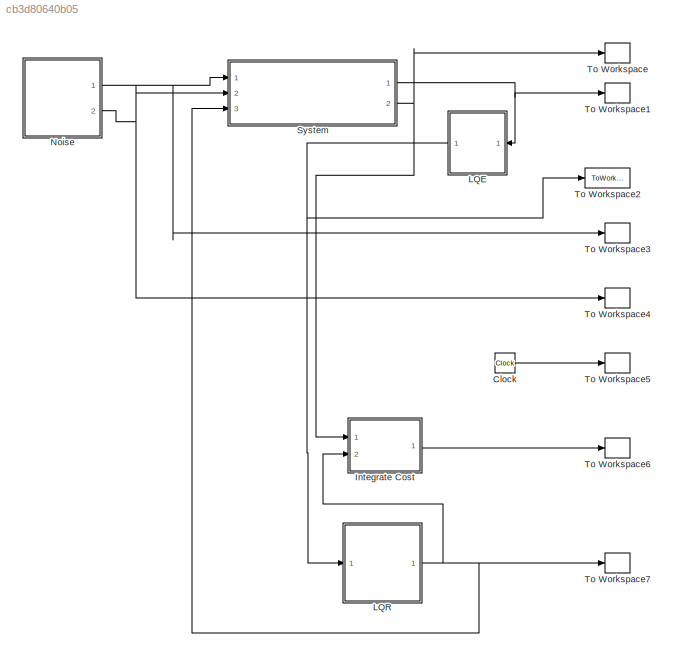
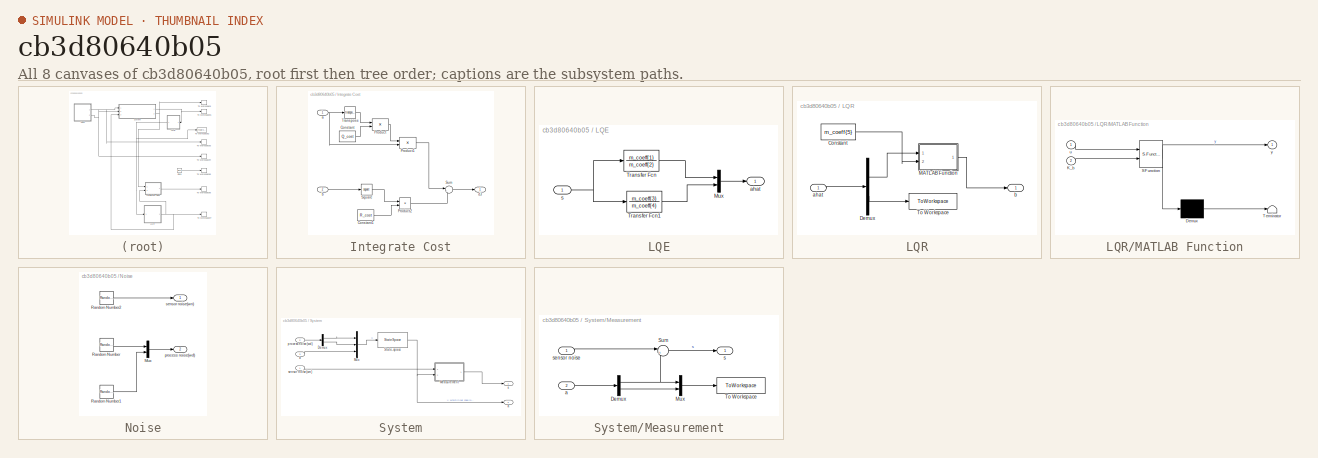
[diagram: thumbnail index - all 8 canvases of the model, root first then tree order]
MODEL slx_cb3d80640b05
KIND model
CONFIG AbsTol = auto
CONFIG EnableMultiTasking = off
CONFIG FixedStep = auto
CONFIG MaxStep = auto
CONFIG MinStep = auto
CONFIG RelTol = 1e-3
CONFIG SampleTimeConstraint = Unconstrained
CONFIG Solver = VariableStepAuto
CONFIG SolverName = VariableStepAuto
CONFIG StartTime = 0.0
CONFIG StopTime = 20.0
BLOCK [Clock] Clock
  Decimation = 20
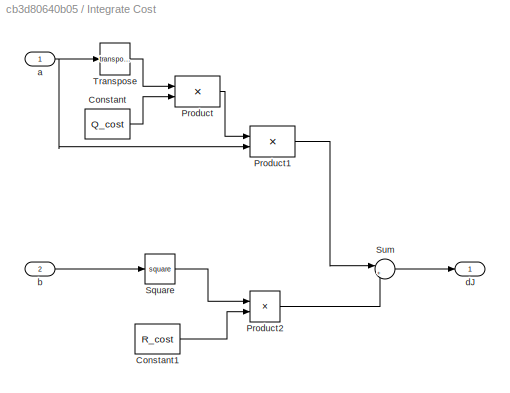
BLOCK [SubSystem] Integrate Cost
  Ports = [2, 1]
  RequestExecContextInheritance = off
BLOCK [Constant] Integrate Cost/Constant
  Value = Q_cost
BLOCK [Constant] Integrate Cost/Constant1
  Value = R_cost
BLOCK [Product] Integrate Cost/Product
  InputSameDT = off
  Multiplication = Matrix(*)
  OutDataTypeStr = Inherit: Inherit via internal rule
  Ports = [2, 1]
  RndMeth = Floor
  SaturateOnIntegerOverflow = off
BLOCK [Product] Integrate Cost/Product1
  InputSameDT = off
  Multiplication = Matrix(*)
  OutDataTypeStr = Inherit: Inherit via internal rule
  Ports = [2, 1]
  RndMeth = Floor
  SaturateOnIntegerOverflow = off
BLOCK [Product] Integrate Cost/Product2
  InputSameDT = off
  OutDataTypeStr = Inherit: Inherit via internal rule
  Ports = [2, 1]
  RndMeth = Floor
  SaturateOnIntegerOverflow = off
BLOCK [Math] Integrate Cost/Square
  Operator = square
  Ports = [1, 1]
  SignedPower = off
BLOCK [Sum] Integrate Cost/Sum
  IconShape = round
  InputSameDT = off
  Inputs = |++
  OutDataTypeStr = Inherit: Inherit via internal rule
  Ports = [2, 1]
  SaturateOnIntegerOverflow = off
BLOCK [Math] Integrate Cost/Transpose
  Operator = transpose
  Ports = [1, 1]
  SignedPower = off
BLOCK [Inport] Integrate Cost/a
  IconDisplay = Port number
BLOCK [Inport] Integrate Cost/b
  IconDisplay = Port number
  Port = 2
BLOCK [Outport] Integrate Cost/dJ
  IconDisplay = Port number
BLOCK [SubSystem] LQE
  Ports = [1, 1]
  RequestExecContextInheritance = off
BLOCK [Mux] LQE/Mux
  DisplayOption = bar
  Inputs = 2
  Ports = [2, 1]
BLOCK [TransferFcn] LQE/Transfer Fcn
  Denominator = m_coeff{2}
  Numerator = m_coeff{1}
BLOCK [TransferFcn] LQE/Transfer Fcn1
  Denominator = m_coeff{4}
  Numerator = m_coeff{3}
BLOCK [Outport] LQE/ahat
  IconDisplay = Port number
BLOCK [Inport] LQE/s
  IconDisplay = Port number
BLOCK [SubSystem] LQR
  Ports = [1, 1]
  RequestExecContextInheritance = off
BLOCK [Constant] LQR/Constant
  Value = m_coeff{5}
BLOCK [Demux] LQR/Demux
  DisplayOption = bar
  Outputs = 2
  Ports = [1, 2]
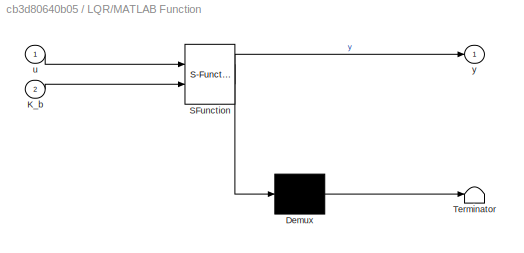
BLOCK [SubSystem] LQR/MATLAB Function
  ErrorFcn = Stateflow.Translate.translate
  PermitHierarchicalResolution = ExplicitOnly
  Ports = [2, 1]
  RequestExecContextInheritance = off
  SFBlockType = MATLAB Function
  TreatAsAtomicUnit = on
BLOCK [Demux] LQR/MATLAB Function/ Demux 
  Outputs = 1
  Ports = [1, 1]
BLOCK [S-Function] LQR/MATLAB Function/ SFunction 
  EnableBusSupport = on
  FunctionName = sf_sfun
  PortCounts = [2 2]
  Ports = [2, 2]
  SFcnIsStateOwnerBlock = off
  SFunctionDeploymentMode = off
  Tag = Stateflow S-Function 2
BLOCK [Terminator] LQR/MATLAB Function/ Terminator 
BLOCK [Inport] LQR/MATLAB Function/K_b
  IconDisplay = Port number
  Port = 2
BLOCK [Inport] LQR/MATLAB Function/u
  IconDisplay = Port number
BLOCK [Outport] LQR/MATLAB Function/y
  IconDisplay = Port number
BLOCK [ToWorkspace] LQR/To Workspace
  FixptAsFi = on
  MaxDataPoints = inf
  Ports = [1]
  SampleTime = -1
  SaveFormat = Timeseries
  VariableName = simout1
BLOCK [Inport] LQR/ahat
  IconDisplay = Port number
BLOCK [Outport] LQR/b
  IconDisplay = Port number
BLOCK [SubSystem] Noise
  Ports = [0, 2]
  RequestExecContextInheritance = off
BLOCK [Mux] Noise/Mux
  DisplayOption = bar
  Inputs = 2
  Ports = [2, 1]
BLOCK [RandomNumber] Noise/Random Number
  SampleTime = 0.01
BLOCK [RandomNumber] Noise/Random Number1
  Mean = 1
  SampleTime = 0.01
BLOCK [RandomNumber] Noise/Random Number2
  SampleTime = 0.01
  Variance = 0.1
BLOCK [Outport] Noise/process noise(wd)
  IconDisplay = Port number
  Port = 2
  PortDimensions = 2
BLOCK [Outport] Noise/sensor noise(wn)
  IconDisplay = Port number
BLOCK [SubSystem] System
  Ports = [3, 2]
  RequestExecContextInheritance = off
BLOCK [Demux] System/Demux
  DisplayOption = bar
  Outputs = 2
  Ports = [1, 2]
BLOCK [SubSystem] System/Measurement
  Ports = [2, 1]
  RequestExecContextInheritance = off
BLOCK [Demux] System/Measurement/Demux
  DisplayOption = bar
  Outputs = 2
  Ports = [1, 2]
BLOCK [Mux] System/Measurement/Mux
  DisplayOption = bar
  Inputs = 2
  Ports = [2, 1]
BLOCK [Sum] System/Measurement/Sum
  IconShape = round
  InputSameDT = off
  Inputs = |++
  OutDataTypeStr = Inherit: Inherit via internal rule
  Ports = [2, 1]
  SaturateOnIntegerOverflow = off
BLOCK [ToWorkspace] System/Measurement/To Workspace
  FixptAsFi = on
  MaxDataPoints = inf
  Ports = [1]
  SampleTime = -1
  SaveFormat = Timeseries
  VariableName = simout
BLOCK [Inport] System/Measurement/a
  IconDisplay = Port number
  Port = 2
BLOCK [Outport] System/Measurement/s
  IconDisplay = Port number
BLOCK [Inport] System/Measurement/sensor noise
  IconDisplay = Port number
BLOCK [Mux] System/Mux
  DisplayOption = bar
  Inputs = 3
  Ports = [3, 1]
BLOCK [StateSpace] System/State-space
  A = KF_sys.A
  B = KF_sys.B
  C = KF_sys.C
  D = KF_sys.D
  InitialCondition = [1 0]
  Ports = [1, 1]
BLOCK [Outport] System/a
  IconDisplay = Port number
  Port = 2
BLOCK [Inport] System/b
  IconDisplay = Port number
  Port = 3
BLOCK [Inport] System/process noise(wd)
  IconDisplay = Port number
  Port = 2
BLOCK [Outport] System/s
  IconDisplay = Port number
BLOCK [Inport] System/sensor noise(wn)
  IconDisplay = Port number
BLOCK [ToWorkspace] To Workspace
  FixptAsFi = on
  MaxDataPoints = inf
  Ports = [1]
  SampleTime = -1
  SaveFormat = Timeseries
  VariableName = a
BLOCK [ToWorkspace] To Workspace1
  FixptAsFi = on
  MaxDataPoints = inf
  Ports = [1]
  SampleTime = -1
  SaveFormat = Timeseries
  VariableName = s
BLOCK [ToWorkspace] To Workspace2
  FixptAsFi = on
  MaxDataPoints = inf
  Ports = [1]
  SampleTime = -1
  SaveFormat = Timeseries
  VariableName = ahat
BLOCK [ToWorkspace] To Workspace3
  FixptAsFi = on
  MaxDataPoints = inf
  Ports = [1]
  SampleTime = -1
  SaveFormat = Timeseries
  VariableName = wn
BLOCK [ToWorkspace] To Workspace4
  FixptAsFi = on
  MaxDataPoints = inf
  Ports = [1]
  SampleTime = -1
  SaveFormat = Timeseries
  VariableName = wd
BLOCK [ToWorkspace] To Workspace5
  FixptAsFi = on
  MaxDataPoints = inf
  Ports = [1]
  SampleTime = -1
  SaveFormat = Timeseries
  VariableName = t
BLOCK [ToWorkspace] To Workspace6
  FixptAsFi = on
  MaxDataPoints = inf
  Ports = [1]
  SampleTime = -1
  SaveFormat = Timeseries
  VariableName = dJ
BLOCK [ToWorkspace] To Workspace7
  FixptAsFi = on
  MaxDataPoints = inf
  Ports = [1]
  SampleTime = -1
  SaveFormat = Timeseries
  VariableName = b
LINE Clock:1 -> To Workspace5:1
LINE Integrate Cost/Constant1:1 -> Integrate Cost/Product2:2
LINE Integrate Cost/Constant:1 -> Integrate Cost/Product:2
LINE Integrate Cost/Product1:1 -> Integrate Cost/Sum:1
LINE Integrate Cost/Product2:1 -> Integrate Cost/Sum:2
LINE Integrate Cost/Product:1 -> Integrate Cost/Product1:1
LINE Integrate Cost/Square:1 -> Integrate Cost/Product2:1
LINE Integrate Cost/Sum:1 -> Integrate Cost/dJ:1
LINE Integrate Cost/Transpose:1 -> Integrate Cost/Product:1
NET Integrate Cost/a:1 -> Integrate Cost/Product1:2, Integrate Cost/Transpose:1
LINE Integrate Cost/b:1 -> Integrate Cost/Square:1
LINE Integrate Cost:1 -> To Workspace6:1
LINE LQE/Mux:1 -> LQE/ahat:1
LINE LQE/Transfer Fcn1:1 -> LQE/Mux:2
LINE LQE/Transfer Fcn:1 -> LQE/Mux:1
NET LQE/s:1 -> LQE/Transfer Fcn1:1, LQE/Transfer Fcn:1
NET LQE:1 -> LQR:1, To Workspace2:1
LINE LQR/Constant:1 -> LQR/MATLAB Function:2
LINE LQR/Demux:1 -> LQR/MATLAB Function:1
LINE LQR/Demux:2 -> LQR/To Workspace:1
LINE LQR/MATLAB Function:1 -> LQR/b:1
LINE LQR/ahat:1 -> LQR/Demux:1
NET LQR:1 -> Integrate Cost:2, System:3, To Workspace7:1
LINE Noise/Mux:1 -> Noise/process noise(wd):1
LINE Noise/Random Number1:1 -> Noise/Mux:2
LINE Noise/Random Number2:1 -> Noise/sensor noise(wn):1
LINE Noise/Random Number:1 -> Noise/Mux:1
NET Noise:1 -> System:1, To Workspace3:1
NET Noise:2 -> System:2, To Workspace4:1
LINE System/Demux:1 -> System/Mux:1
LINE System/Demux:2 -> System/Mux:2
NET System/Measurement/Demux:1 -> System/Measurement/Mux:1, System/Measurement/Sum:2
LINE System/Measurement/Demux:2 -> System/Measurement/Mux:2
LINE System/Measurement/Mux:1 -> System/Measurement/To Workspace:1
LINE System/Measurement/Sum:1 -> System/Measurement/s:1
LINE System/Measurement/a:1 -> System/Measurement/Demux:1
LINE System/Measurement/sensor noise:1 -> System/Measurement/Sum:1
LINE System/Measurement:1 -> System/s:1
LINE System/Mux:1 -> System/State-space:1
NET System/State-space:1 -> System/Measurement:2, System/a:1
LINE System/b:1 -> System/Mux:3
LINE System/process noise(wd):1 -> System/Demux:1
LINE System/sensor noise(wn):1 -> System/Measurement:1
NET System:1 -> LQE:1, To Workspace1:1
NET System:2 -> Integrate Cost:1, To Workspace:1
note: NET lines group one-source signal fan-out (src -> all destinations, sorted); 1:1 wires keep LINE
CHART LQR/MATLAB Function states=1 transitions=1
  STATE_LABEL 'eML_blk_kernel()'
  STATE_LABEL 'SCRIPT:\nfunction y = fcn(u,K_b)\n    y=0;\n    for i=1:length(K_b)\n        y=y+K_b(i)*u^(i-1);\n    end\nend\n\n'
